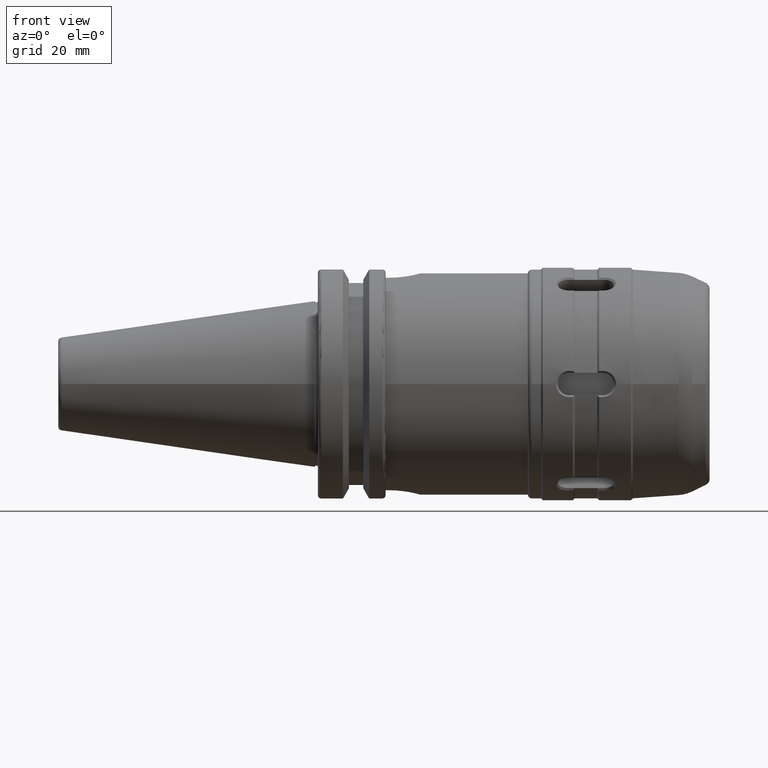
[diagram: clean part render]
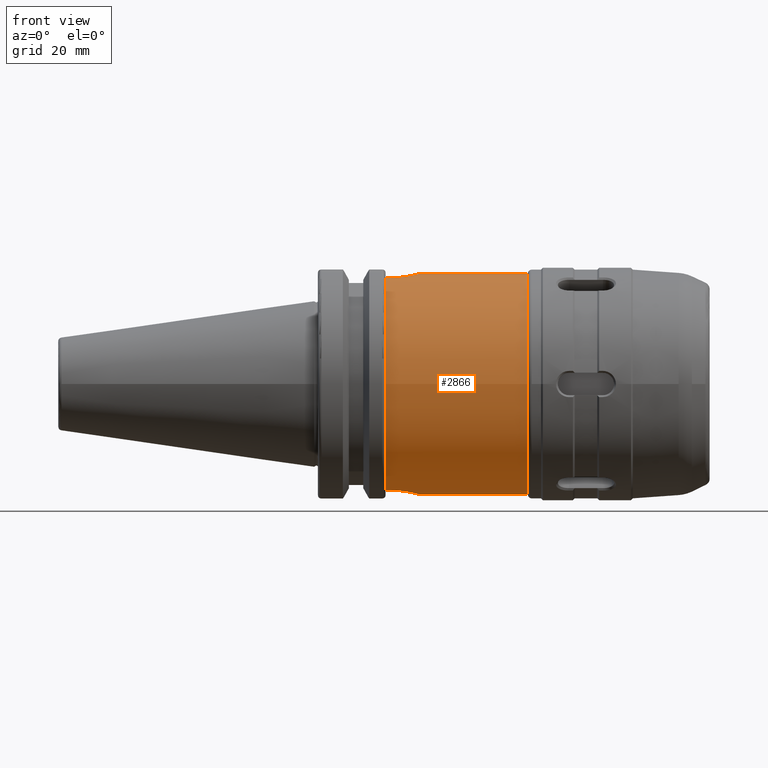
[diagram: same view with one face highlighted and labeled with its STEP entity id]
A machine part, front view. The second image highlights one B-rep face of the part: STEP entity #2866.
In plain terms, the highlighted cylindrical surface (bore or boss wall) has radius 29.5 mm, axis along (1, 0, 0).
Its self-contained STEP definition (entity closure, byte-faithful):
#245=FACE_OUTER_BOUND('',#421,.T.);
#421=EDGE_LOOP('',(#1933,#1934,#1935,#1936,#1937,#1938,#1939,#1940,#1941,
#1942,#1943,#1944));
#614=CIRCLE('',#3119,29.5);
#615=CIRCLE('',#3120,29.5);
#616=CIRCLE('',#3121,29.5);
#617=CIRCLE('',#3122,29.5);
#748=LINE('',#4255,#951);
#749=LINE('',#4259,#952);
#750=LINE('',#4280,#953);
#751=LINE('',#4283,#954);
#752=LINE('',#4285,#955);
#951=VECTOR('',#3430,29.5);
#952=VECTOR('',#3433,10.);
#953=VECTOR('',#3434,10.);
#954=VECTOR('',#3437,10.);
#955=VECTOR('',#3438,10.);
#1152=B_SPLINE_CURVE_WITH_KNOTS('',3,(#4228,#4229,#4230,#4231,#4232,#4233,
#4234,#4235,#4236,#4237,#4238,#4239,#4240,#4241,#4242,#4243,#4244,#4245),
 .UNSPECIFIED.,.F.,.F.,(4,2,2,2,2,2,2,2,4),(-2.48217562690499,-2.17187020565508,
-1.86156478440517,-1.55132629892883,-1.24108781345249,-0.930849327976154,
-0.620610842499815,-0.310305421249907,0.),.UNSPECIFIED.);
#1153=B_SPLINE_CURVE_WITH_KNOTS('',3,(#4261,#4262,#4263,#4264,#4265,#4266,
#4267,#4268,#4269,#4270,#4271,#4272,#4273,#4274,#4275,#4276,#4277,#4278),
 .UNSPECIFIED.,.F.,.F.,(4,2,2,2,2,2,2,2,4),(-2.48217562690499,-2.17187020565508,
-1.86156478440517,-1.55132629892883,-1.24108781345249,-0.930849327976154,
-0.620610842499815,-0.310305421249907,0.),.UNSPECIFIED.);
#1196=VERTEX_POINT('',#4226);
#1197=VERTEX_POINT('',#4227);
#1200=VERTEX_POINT('',#4252);
#1201=VERTEX_POINT('',#4254);
#1202=VERTEX_POINT('',#4256);
#1203=VERTEX_POINT('',#4258);
#1204=VERTEX_POINT('',#4260);
#1205=VERTEX_POINT('',#4279);
#1206=VERTEX_POINT('',#4281);
#1207=VERTEX_POINT('',#4284);
#1483=EDGE_CURVE('',#1196,#1197,#1152,.T.);
#1487=EDGE_CURVE('',#1200,#1200,#614,.T.);
#1488=EDGE_CURVE('',#1200,#1201,#748,.T.);
#1489=EDGE_CURVE('',#1202,#1201,#615,.T.);
#1490=EDGE_CURVE('',#1202,#1203,#749,.T.);
#1491=EDGE_CURVE('',#1203,#1204,#1153,.T.);
#1492=EDGE_CURVE('',#1204,#1205,#750,.T.);
#1493=EDGE_CURVE('',#1206,#1205,#616,.T.);
#1494=EDGE_CURVE('',#1206,#1196,#751,.T.);
#1495=EDGE_CURVE('',#1197,#1207,#752,.T.);
#1496=EDGE_CURVE('',#1201,#1207,#617,.T.);
#1933=ORIENTED_EDGE('',*,*,#1487,.F.);
#1934=ORIENTED_EDGE('',*,*,#1488,.T.);
#1935=ORIENTED_EDGE('',*,*,#1489,.F.);
#1936=ORIENTED_EDGE('',*,*,#1490,.T.);
#1937=ORIENTED_EDGE('',*,*,#1491,.T.);
#1938=ORIENTED_EDGE('',*,*,#1492,.T.);
#1939=ORIENTED_EDGE('',*,*,#1493,.F.);
#1940=ORIENTED_EDGE('',*,*,#1494,.T.);
#1941=ORIENTED_EDGE('',*,*,#1483,.T.);
#1942=ORIENTED_EDGE('',*,*,#1495,.T.);
#1943=ORIENTED_EDGE('',*,*,#1496,.F.);
#1944=ORIENTED_EDGE('',*,*,#1488,.F.);
#2822=CYLINDRICAL_SURFACE('',#3118,29.5);
#2866=ADVANCED_FACE('',(#245),#2822,.T.);
#3118=AXIS2_PLACEMENT_3D('',#4251,#3426,#3427);
#3119=AXIS2_PLACEMENT_3D('',#4253,#3428,#3429);
#3120=AXIS2_PLACEMENT_3D('',#4257,#3431,#3432);
#3121=AXIS2_PLACEMENT_3D('',#4282,#3435,#3436);
#3122=AXIS2_PLACEMENT_3D('',#4286,#3439,#3440);
#3426=DIRECTION('center_axis',(1.,0.,0.));
#3427=DIRECTION('ref_axis',(0.,1.,0.));
#3428=DIRECTION('center_axis',(1.,0.,0.));
#3429=DIRECTION('ref_axis',(0.,0.,-1.));
#3430=DIRECTION('',(-1.,0.,0.));
#3431=DIRECTION('center_axis',(-1.,0.,0.));
#3432=DIRECTION('ref_axis',(0.,1.,0.));
#3433=DIRECTION('',(1.,0.,0.));
#3434=DIRECTION('',(-1.,0.,0.));
#3435=DIRECTION('center_axis',(-1.,0.,0.));
#3436=DIRECTION('ref_axis',(0.,1.,0.));
#3437=DIRECTION('',(1.,0.,0.));
#3438=DIRECTION('',(-1.,0.,0.));
#3439=DIRECTION('center_axis',(-1.,0.,0.));
#3440=DIRECTION('ref_axis',(0.,1.,0.));
#4226=CARTESIAN_POINT('',(20.05,8.19,28.3403228633691));
#4227=CARTESIAN_POINT('',(20.05,-8.19,28.3403228633691));
#4228=CARTESIAN_POINT('Ctrl Pts',(20.05,8.19,28.3403228633691));
#4229=CARTESIAN_POINT('Ctrl Pts',(21.0843514041664,8.19,28.3403228633691));
#4230=CARTESIAN_POINT('Ctrl Pts',(22.1836772647205,7.98216732518875,28.4028638088176));
#4231=CARTESIAN_POINT('Ctrl Pts',(24.199761775165,7.1447224355008,28.6249996104619));
#4232=CARTESIAN_POINT('Ctrl Pts',(25.1170284607076,6.51538061512803,28.7809879482361));
#4233=CARTESIAN_POINT('Ctrl Pts',(26.5652244035938,5.06718467224184,29.070928021671));
#4234=CARTESIAN_POINT('Ctrl Pts',(27.1946875928492,4.1498537606321,29.2242494427015));
#4235=CARTESIAN_POINT('Ctrl Pts',(28.0322215907007,2.13353852002607,29.4402115319581));
#4236=CARTESIAN_POINT('Ctrl Pts',(28.24,1.03412828492113,29.5));
#4237=CARTESIAN_POINT('Ctrl Pts',(28.24,-1.03412828492113,29.5));
#4238=CARTESIAN_POINT('Ctrl Pts',(28.0322215907007,-2.13353852002608,29.4402115319581));
#4239=CARTESIAN_POINT('Ctrl Pts',(27.1946875928492,-4.1498537606321,29.2242494427015));
#4240=CARTESIAN_POINT('Ctrl Pts',(26.5652244035938,-5.06718467224184,29.070928021671));
#4241=CARTESIAN_POINT('Ctrl Pts',(25.1170284607076,-6.51538061512803,28.7809879482361));
#4242=CARTESIAN_POINT('Ctrl Pts',(24.199761775165,-7.14472243550081,28.6249996104619));
#4243=CARTESIAN_POINT('Ctrl Pts',(22.1836772647205,-7.98216732518876,28.4028638088176));
#4244=CARTESIAN_POINT('Ctrl Pts',(21.0843514041664,-8.19,28.3403228633691));
#4245=CARTESIAN_POINT('Ctrl Pts',(20.05,-8.19,28.3403228633691));
#4251=CARTESIAN_POINT('Origin',(38.025,0.,0.));
#4252=CARTESIAN_POINT('',(57.,-29.5,-3.61270805748469E-15));
#4253=CARTESIAN_POINT('Origin',(57.,0.,0.));
#4254=CARTESIAN_POINT('',(19.05,-29.5,-3.61270805748469E-15));
#4255=CARTESIAN_POINT('',(38.025,-29.5,-3.61270805748469E-15));
#4256=CARTESIAN_POINT('',(19.05,-8.19,-28.3403228633691));
#4257=CARTESIAN_POINT('Origin',(19.05,0.,0.));
#4258=CARTESIAN_POINT('',(20.05,-8.19,-28.3403228633691));
#4259=CARTESIAN_POINT('',(38.025,-8.19,-28.3403228633691));
#4260=CARTESIAN_POINT('',(20.05,8.19,-28.3403228633691));
#4261=CARTESIAN_POINT('Ctrl Pts',(20.05,-8.19,-28.3403228633691));
#4262=CARTESIAN_POINT('Ctrl Pts',(21.0843514041664,-8.19,-28.3403228633691));
#4263=CARTESIAN_POINT('Ctrl Pts',(22.1836772647205,-7.98216732518875,-28.4028638088176));
#4264=CARTESIAN_POINT('Ctrl Pts',(24.199761775165,-7.1447224355008,-28.6249996104619));
#4265=CARTESIAN_POINT('Ctrl Pts',(25.1170284607076,-6.51538061512802,-28.7809879482361));
#4266=CARTESIAN_POINT('Ctrl Pts',(26.5652244035938,-5.06718467224184,-29.070928021671));
#4267=CARTESIAN_POINT('Ctrl Pts',(27.1946875928492,-4.14985376063209,-29.2242494427015));
#4268=CARTESIAN_POINT('Ctrl Pts',(28.0322215907007,-2.13353852002607,-29.4402115319581));
#4269=CARTESIAN_POINT('Ctrl Pts',(28.24,-1.03412828492113,-29.5));
#4270=CARTESIAN_POINT('Ctrl Pts',(28.24,1.03412828492113,-29.5));
#4271=CARTESIAN_POINT('Ctrl Pts',(28.0322215907007,2.13353852002607,-29.4402115319581));
#4272=CARTESIAN_POINT('Ctrl Pts',(27.1946875928492,4.1498537606321,-29.2242494427015));
#4273=CARTESIAN_POINT('Ctrl Pts',(26.5652244035938,5.06718467224184,-29.070928021671));
#4274=CARTESIAN_POINT('Ctrl Pts',(25.1170284607076,6.51538061512802,-28.7809879482361));
#4275=CARTESIAN_POINT('Ctrl Pts',(24.199761775165,7.1447224355008,-28.6249996104619));
#4276=CARTESIAN_POINT('Ctrl Pts',(22.1836772647205,7.98216732518875,-28.4028638088176));
#4277=CARTESIAN_POINT('Ctrl Pts',(21.0843514041664,8.19,-28.3403228633691));
#4278=CARTESIAN_POINT('Ctrl Pts',(20.05,8.19,-28.3403228633691));
#4279=CARTESIAN_POINT('',(19.05,8.19,-28.3403228633691));
#4280=CARTESIAN_POINT('',(38.025,8.18999999999999,-28.3403228633691));
#4281=CARTESIAN_POINT('',(19.05,8.19,28.3403228633691));
#4282=CARTESIAN_POINT('Origin',(19.05,0.,0.));
#4283=CARTESIAN_POINT('',(38.025,8.19,28.3403228633691));
#4284=CARTESIAN_POINT('',(19.05,-8.19,28.3403228633691));
#4285=CARTESIAN_POINT('',(38.025,-8.18999999999999,28.3403228633691));
#4286=CARTESIAN_POINT('Origin',(19.05,0.,0.));